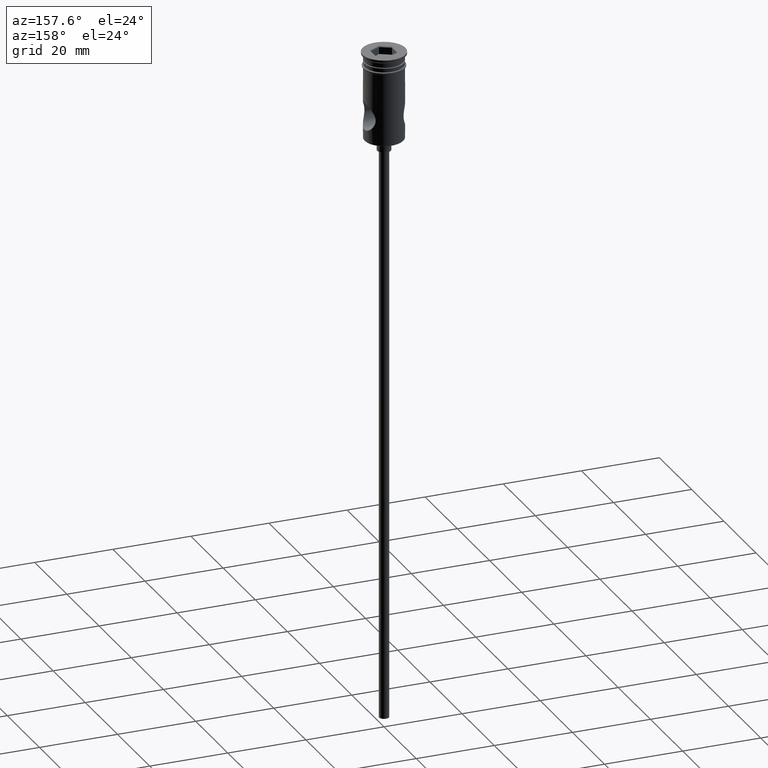
[diagram: clean part render]
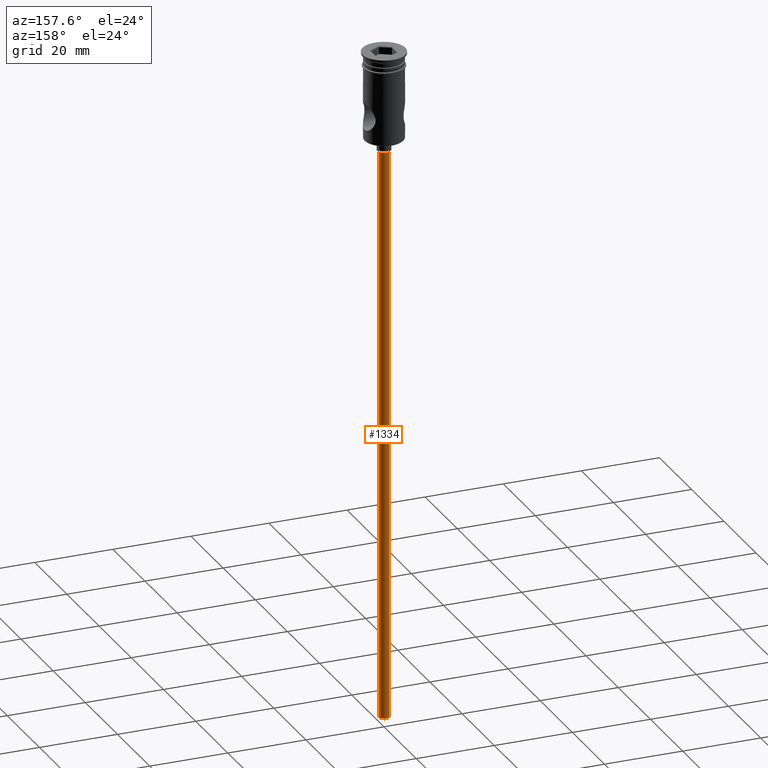
[diagram: same view with one face highlighted and labeled with its STEP entity id]
A machine part, auxiliary view. The second image highlights one B-rep face of the part: STEP entity #1334.
In plain terms, the highlighted cylindrical surface (edge-blend (fillet) strip) has radius 1.25 mm, axis along (-0, -0, 1).
Its self-contained STEP definition (entity closure, byte-faithful):
#2 = VECTOR ( 'NONE', #866, 1000.000000000000000 ) ;
#135 = CARTESIAN_POINT ( 'NONE',  ( 0.000000000000000000, 0.000000000000000000, -172.5000000000000000 ) ) ;
#151 = EDGE_CURVE ( 'NONE', #839, #619, #860, .T. ) ;
#155 = DIRECTION ( 'NONE',  ( 0.000000000000000000, 0.000000000000000000, -1.000000000000000000 ) ) ;
#193 = VERTEX_POINT ( 'NONE', #339 ) ;
#197 = CARTESIAN_POINT ( 'NONE',  ( -1.250000000000000000, 1.530808498934191571E-16, -172.5000000000000000 ) ) ;
#205 = EDGE_CURVE ( 'NONE', #193, #619, #348, .T. ) ;
#212 = VECTOR ( 'NONE', #658, 1000.000000000000000 ) ;
#311 = ORIENTED_EDGE ( 'NONE', *, *, #151, .F. ) ;
#339 = CARTESIAN_POINT ( 'NONE',  ( -1.250000000000000000, 1.530808498934191571E-16, -25.50000000000000000 ) ) ;
#346 = DIRECTION ( 'NONE',  ( 1.000000000000000000, 0.000000000000000000, 0.000000000000000000 ) ) ;
#348 = CIRCLE ( 'NONE', #1247, 1.250000000000000000 ) ;
#475 = CARTESIAN_POINT ( 'NONE',  ( 1.250000000000000000, 0.000000000000000000, -172.5000000000000000 ) ) ;
#485 = VERTEX_POINT ( 'NONE', #758 ) ;
#490 = EDGE_CURVE ( 'NONE', #485, #193, #1302, .T. ) ;
#619 = VERTEX_POINT ( 'NONE', #1138 ) ;
#655 = ORIENTED_EDGE ( 'NONE', *, *, #490, .T. ) ;
#658 = DIRECTION ( 'NONE',  ( -0.000000000000000000, -0.000000000000000000, 1.000000000000000000 ) ) ;
#697 = ORIENTED_EDGE ( 'NONE', *, *, #205, .T. ) ;
#718 = CIRCLE ( 'NONE', #837, 1.250000000000000000 ) ;
#758 = CARTESIAN_POINT ( 'NONE',  ( -1.250000000000000000, 1.530808498934191571E-16, -172.5000000000000000 ) ) ;
#788 = DIRECTION ( 'NONE',  ( -1.000000000000000000, 0.000000000000000000, 0.000000000000000000 ) ) ;
#796 = DIRECTION ( 'NONE',  ( 0.000000000000000000, 0.000000000000000000, -1.000000000000000000 ) ) ;
#802 = DIRECTION ( 'NONE',  ( -1.000000000000000000, 0.000000000000000000, 0.000000000000000000 ) ) ;
#837 = AXIS2_PLACEMENT_3D ( 'NONE', #135, #155, #788 ) ;
#839 = VERTEX_POINT ( 'NONE', #475 ) ;
#860 = LINE ( 'NONE', #975, #2 ) ;
#866 = DIRECTION ( 'NONE',  ( -0.000000000000000000, -0.000000000000000000, 1.000000000000000000 ) ) ;
#878 = CARTESIAN_POINT ( 'NONE',  ( 0.000000000000000000, 0.000000000000000000, -172.5000000000000000 ) ) ;
#971 = ORIENTED_EDGE ( 'NONE', *, *, #1345, .F. ) ;
#974 = AXIS2_PLACEMENT_3D ( 'NONE', #878, #1198, #346 ) ;
#975 = CARTESIAN_POINT ( 'NONE',  ( 1.250000000000000000, 0.000000000000000000, -172.5000000000000000 ) ) ;
#988 = EDGE_LOOP ( 'NONE', ( #971, #655, #697, #311 ) ) ;
#1115 = CARTESIAN_POINT ( 'NONE',  ( 0.000000000000000000, 0.000000000000000000, -25.50000000000000000 ) ) ;
#1138 = CARTESIAN_POINT ( 'NONE',  ( 1.250000000000000000, 0.000000000000000000, -25.50000000000000000 ) ) ;
#1198 = DIRECTION ( 'NONE',  ( -0.000000000000000000, -0.000000000000000000, 1.000000000000000000 ) ) ;
#1247 = AXIS2_PLACEMENT_3D ( 'NONE', #1115, #796, #802 ) ;
#1302 = LINE ( 'NONE', #197, #212 ) ;
#1313 = CYLINDRICAL_SURFACE ( 'NONE', #974, 1.250000000000000000 ) ;
#1334 = ADVANCED_FACE ( 'NONE', ( #1431 ), #1313, .T. ) ;
#1345 = EDGE_CURVE ( 'NONE', #485, #839, #718, .T. ) ;
#1431 = FACE_OUTER_BOUND ( 'NONE', #988, .T. ) ;